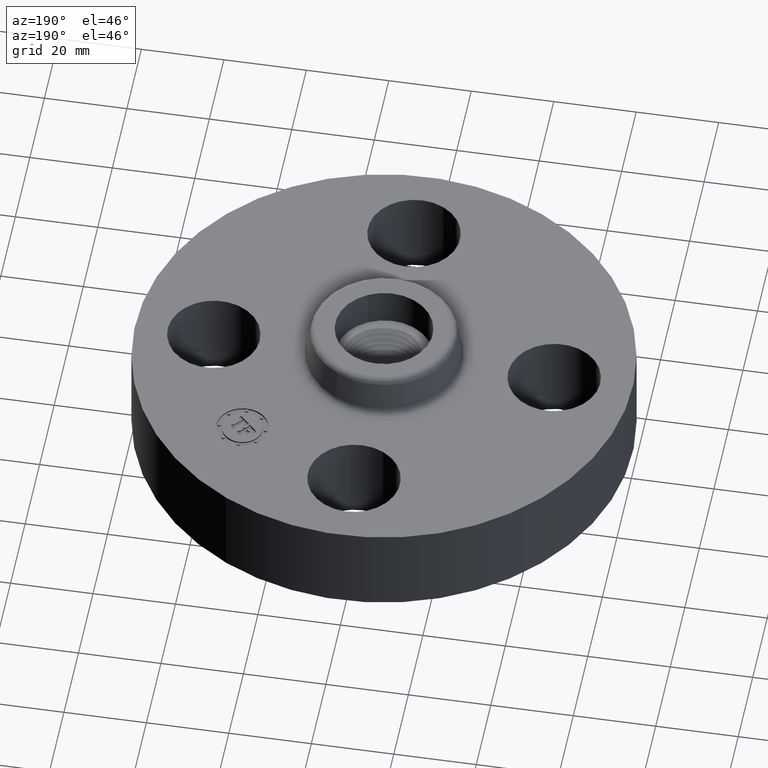
[diagram: clean part render]
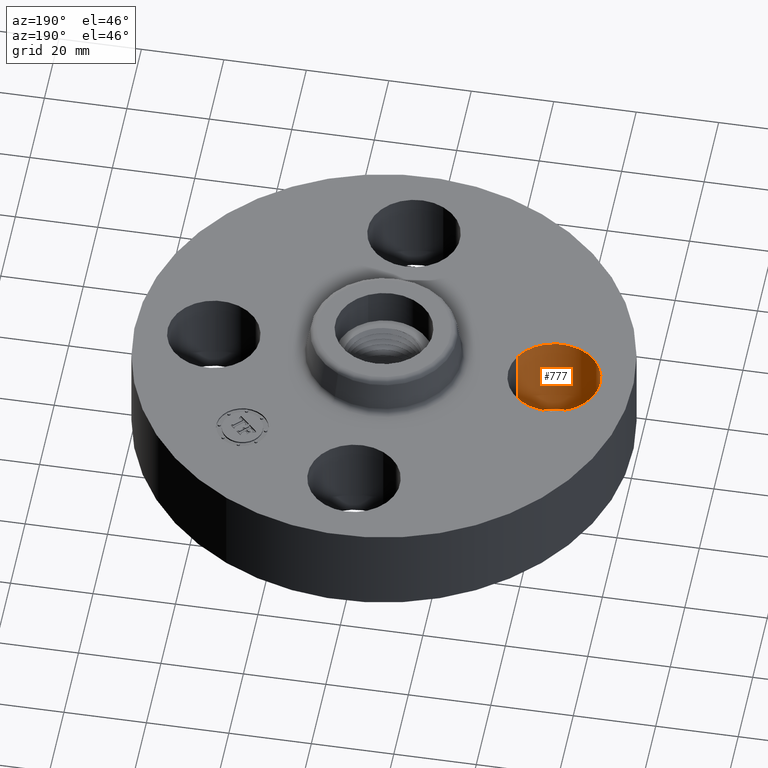
[diagram: same view with one face highlighted and labeled with its STEP entity id]
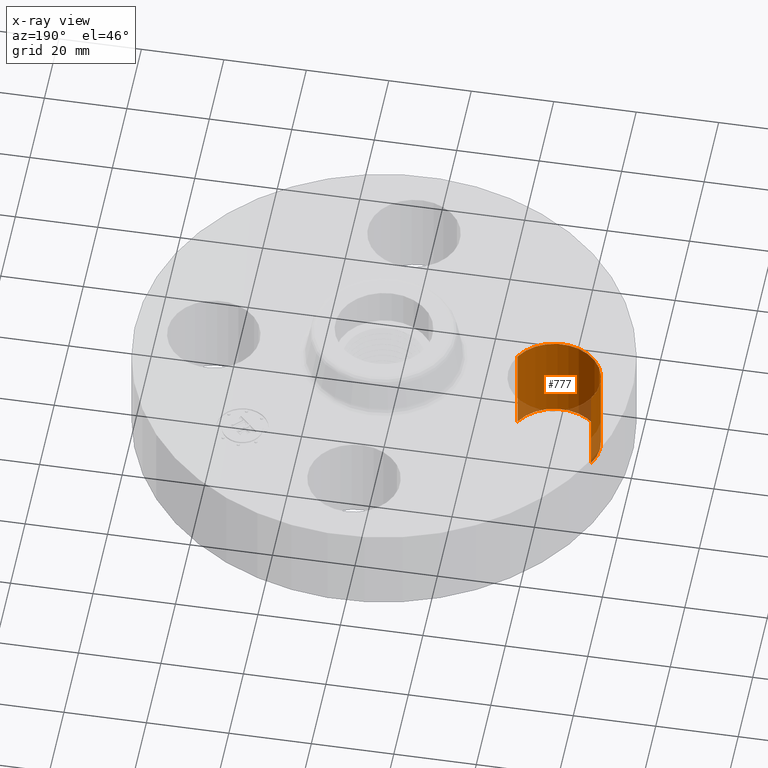
[diagram: x-ray of the same camera — body ghosted, the highlighted face saturated]
A machine part, auxiliary view. The second image highlights one B-rep face of the part: STEP entity #777.
The next image is the same camera in x-ray: the body ghosted, the highlighted face saturated — about 12% of this face is hidden behind the body in this view.
In plain terms, the highlighted cylindrical surface (partial cylindrical patch) has radius 11.176 mm, axis along (-0, 0, -1).
Its self-contained STEP definition (entity closure, byte-faithful):
#669=AXIS2_PLACEMENT_3D('Circle Axis2P3D',#667,#668,$) ;
#750=AXIS2_PLACEMENT_3D('Cylinder Axis2P3D',#747,#748,#749) ;
#768=AXIS2_PLACEMENT_3D('Circle Axis2P3D',#766,#767,$) ;
#667=CARTESIAN_POINT('Axis2P3D Location',(-1.62500000001,-2.79741234551E-016,0.)) ;
#671=CARTESIAN_POINT('Vertex',(-1.23886367277,-0.210947236987,0.)) ;
#673=CARTESIAN_POINT('Vertex',(-2.01113632724,0.210947236987,0.)) ;
#747=CARTESIAN_POINT('Axis2P3D Location',(-1.62500000001,-1.99005104862E-016,0.87606299213)) ;
#752=CARTESIAN_POINT('Line Origine',(-1.23886367277,-0.210947236987,0.440000000002)) ;
#756=CARTESIAN_POINT('Vertex',(-1.23886367277,-0.210947236987,0.880000000004)) ;
#759=CARTESIAN_POINT('Line Origine',(-2.01113632724,0.210947236987,0.440000000002)) ;
#763=CARTESIAN_POINT('Vertex',(-2.01113632724,0.210947236987,0.880000000004)) ;
#766=CARTESIAN_POINT('Axis2P3D Location',(-1.62500000001,-1.99005104862E-016,0.880000000004)) ;
#668=DIRECTION('Axis2P3D Direction',(0.,0.,-0.0393700787402)) ;
#748=DIRECTION('Axis2P3D Direction',(-0.,0.,-0.0393700787402)) ;
#749=DIRECTION('Axis2P3D XDirection',(-0.0345504945626,0.0188750212049,0.)) ;
#753=DIRECTION('Vector Direction',(0.,0.,-0.0393700787402)) ;
#760=DIRECTION('Vector Direction',(0.,0.,-0.0393700787402)) ;
#767=DIRECTION('Axis2P3D Direction',(-0.,0.,-0.0393700787402)) ;
#754=VECTOR('Line Direction',#753,0.0393700787402) ;
#761=VECTOR('Line Direction',#760,0.0393700787402) ;
#772=ORIENTED_EDGE('',*,*,#758,.F.) ;
#773=ORIENTED_EDGE('',*,*,#675,.T.) ;
#774=ORIENTED_EDGE('',*,*,#765,.T.) ;
#775=ORIENTED_EDGE('',*,*,#770,.F.) ;
#777=ADVANCED_FACE('PartBody',(#776),#751,.F.) ;
#670=CIRCLE('generated circle',#669,0.440000000002) ;
#769=CIRCLE('generated circle',#768,0.440000000002) ;
#751=CYLINDRICAL_SURFACE('generated cylinder',#750,0.440000000002) ;
#675=EDGE_CURVE('',#672,#674,#670,.T.) ;
#758=EDGE_CURVE('',#672,#757,#755,.F.) ;
#765=EDGE_CURVE('',#674,#764,#762,.F.) ;
#770=EDGE_CURVE('',#757,#764,#769,.T.) ;
#771=EDGE_LOOP('',(#772,#773,#774,#775)) ;
#776=FACE_OUTER_BOUND('',#771,.T.) ;
#755=LINE('Line',#752,#754) ;
#762=LINE('Line',#759,#761) ;
#672=VERTEX_POINT('',#671) ;
#674=VERTEX_POINT('',#673) ;
#757=VERTEX_POINT('',#756) ;
#764=VERTEX_POINT('',#763) ;